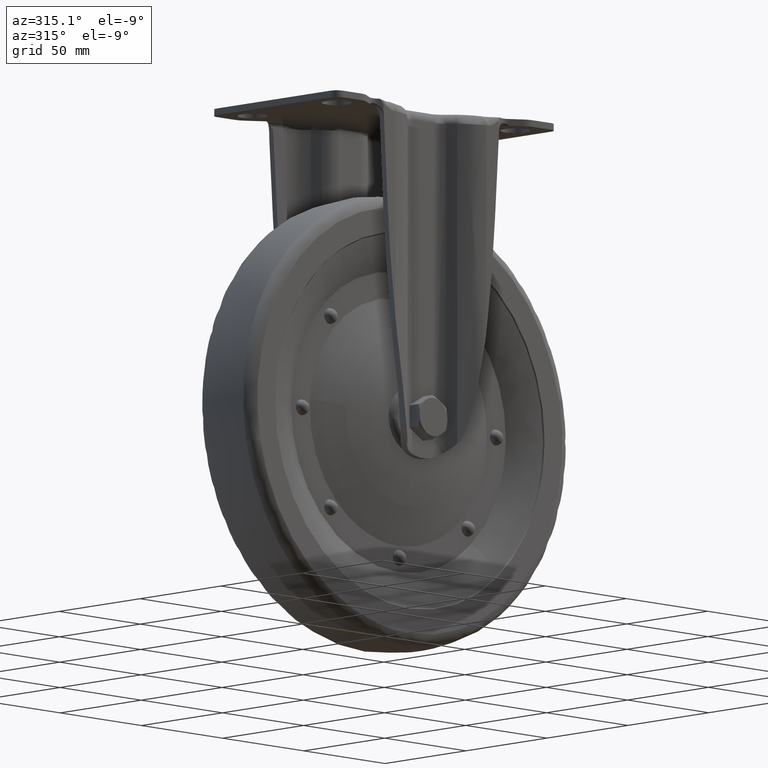
[diagram: clean part render]
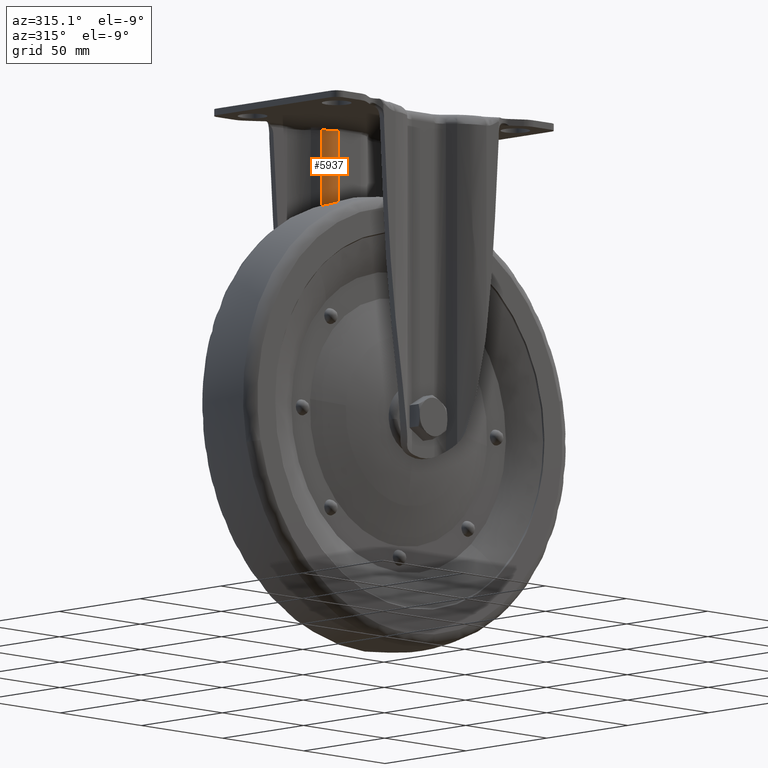
[diagram: same view with one face highlighted and labeled with its STEP entity id]
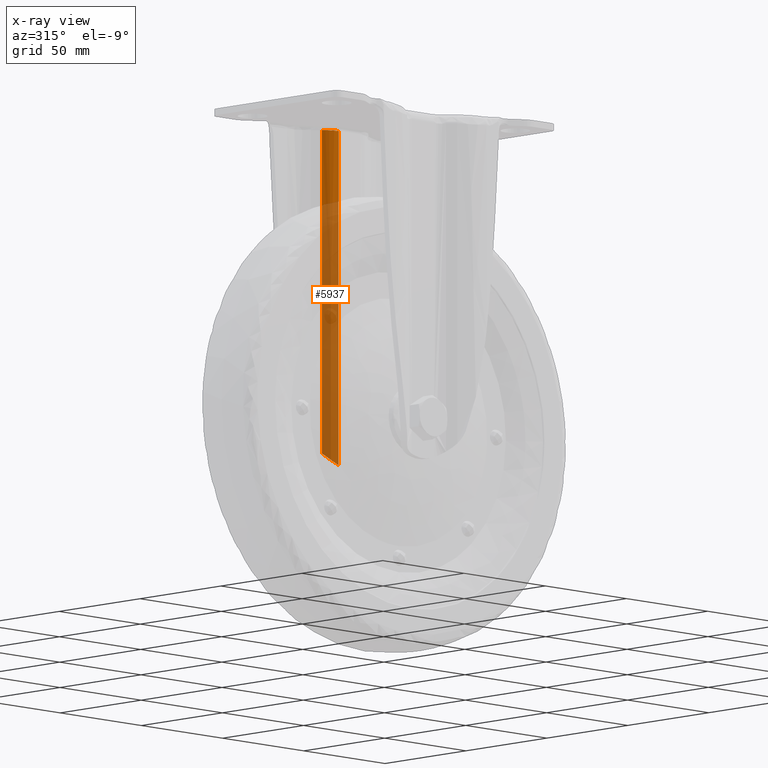
[diagram: x-ray of the same camera — body ghosted, the highlighted face saturated]
A machine part, auxiliary view. The second image highlights one B-rep face of the part: STEP entity #5937.
The next image is the same camera in x-ray: the body ghosted, the highlighted face saturated — about 78% of this face is hidden behind the body in this view.
In plain terms, the highlighted face is a freeform B-spline surface patch.
Its self-contained STEP definition (entity closure, byte-faithful):
#5827=CARTESIAN_POINT('',(-14.056637511912299,24.309468325761600,-147.516456555682400));
#5828=VERTEX_POINT('',#5827);
#5829=CARTESIAN_POINT('',(-14.056637334218900,24.309468690706002,-4.699999999999930));
#5830=VERTEX_POINT('',#5829);
#5831=CARTESIAN_POINT('',(-14.056637511912299,24.309468325761600,-147.516456555682400));
#5832=CARTESIAN_POINT('',(-14.056637334218900,24.309468690706002,-4.699999999999930));
#5833=QUASI_UNIFORM_CURVE('',1,(#5831,#5832),.UNSPECIFIED.,.F.,.U.);
#5834=EDGE_CURVE('',#5828,#5830,#5833,.T.);
#5869=CARTESIAN_POINT('',(-6.587603567241464,21.253432849859859,-155.976386313143710));
#5870=CARTESIAN_POINT('',(-6.587603567241464,21.253432849859859,-0.918090342171325));
#5871=CARTESIAN_POINT('',(-11.229826518410288,21.131871963753873,-155.976386313143650));
#5872=CARTESIAN_POINT('',(-11.229826518410288,21.131871963753873,-0.918090342171325));
#5873=CARTESIAN_POINT('',(-14.322616230846410,24.595924903886111,-155.976386313143710));
#5874=CARTESIAN_POINT('',(-14.322616230846410,24.595924903886111,-0.918090342171325));
#5882=(BOUNDED_SURFACE()B_SPLINE_SURFACE(1,2,((#5869,#5871,#5873),(#5870,#5872,#5874)),.UNSPECIFIED.,.F.,.F.,.U.)B_SPLINE_SURFACE_WITH_KNOTS((2,2),(3,3),(0.0,155.058295970972410),(0.0,8.836014535739780),.UNSPECIFIED.)GEOMETRIC_REPRESENTATION_ITEM()RATIONAL_B_SPLINE_SURFACE(((1.0,0.905065768128115,0.995165354215990),(1.0,0.905065768128115,0.995165354215990)))REPRESENTATION_ITEM('')SURFACE());
#5883=CARTESIAN_POINT('',(-6.849839000000090,21.250000000000000,-152.286718354286510));
#5884=VERTEX_POINT('',#5883);
#5885=CARTESIAN_POINT('',(-6.849839000000090,21.250000000000000,-4.699999999999930));
#5886=VERTEX_POINT('',#5885);
#5887=CARTESIAN_POINT('',(-6.849839000000090,21.250000000000000,-152.286718354286510));
#5888=CARTESIAN_POINT('',(-6.849839000000090,21.250000000000000,-4.699999999999930));
#5889=QUASI_UNIFORM_CURVE('',1,(#5887,#5888),.UNSPECIFIED.,.F.,.U.);
#5890=EDGE_CURVE('',#5884,#5886,#5889,.T.);
#5891=ORIENTED_EDGE('',*,*,#5890,.T.);
#5892=CARTESIAN_POINT('',(-6.849839000000090,21.250000000000000,-4.699999999999930));
#5893=CARTESIAN_POINT('',(-11.102649197869582,21.250000000000000,-4.699999999999931));
#5894=CARTESIAN_POINT('',(-14.056637334218889,24.309468690706002,-4.699999999999930));
#5902=(BOUNDED_CURVE()B_SPLINE_CURVE(2,(#5892,#5893,#5894),.UNSPECIFIED.,.F.,.U.)CURVE()GEOMETRIC_REPRESENTATION_ITEM()QUASI_UNIFORM_CURVE()RATIONAL_B_SPLINE_CURVE((1.0,0.920488117445490,1.0))REPRESENTATION_ITEM(''));
#5903=EDGE_CURVE('',#5886,#5830,#5902,.T.);
#5904=ORIENTED_EDGE('',*,*,#5903,.T.);
#5905=ORIENTED_EDGE('',*,*,#5834,.F.);
#5906=CARTESIAN_POINT('',(-6.849839000000051,21.250000000000000,-152.286718354286390));
#5907=CARTESIAN_POINT('',(-7.215039056203518,21.250000000000000,-152.151706831326210));
#5908=CARTESIAN_POINT('',(-7.575707682414373,21.269911567605991,-152.005560160268000));
#5909=CARTESIAN_POINT('',(-8.109935923799647,21.327953020025511,-151.769631415687910));
#5910=CARTESIAN_POINT('',(-8.286881966507190,21.352006694523240,-151.688201707453400));
#5911=CARTESIAN_POINT('',(-8.550600551215522,21.395026320985650,-151.561858086202190));
#5912=CARTESIAN_POINT('',(-8.638341053742789,21.410547725266579,-151.518983518755790));
#5913=CARTESIAN_POINT('',(-8.812354702533384,21.443712555290968,-151.432283106414590));
#5914=CARTESIAN_POINT('',(-8.898694349938360,21.461363314154639,-151.388427851272210));
#5915=CARTESIAN_POINT('',(-9.327140939350720,21.554800360510630,-151.166676861434690));
#5916=CARTESIAN_POINT('',(-9.659518865265044,21.646077406618119,-150.981366797306210));
#5917=CARTESIAN_POINT('',(-10.305222718595370,21.858646479808229,-150.596047781184100));
#5918=CARTESIAN_POINT('',(-10.618542876014351,21.979949192011460,-150.396035272899410));
#5919=CARTESIAN_POINT('',(-11.075089834858860,22.183125080298151,-150.085685503294710));
#5920=CARTESIAN_POINT('',(-11.225029501339881,22.254396442300941,-149.980512603012900));
#5921=CARTESIAN_POINT('',(-11.446652350965071,22.366537249657831,-149.820248933597210));
#5922=CARTESIAN_POINT('',(-11.519977295169310,22.404793139675199,-149.766408822365010));
#5923=CARTESIAN_POINT('',(-11.664879562684570,22.482672415162451,-149.658410444833010));
#5924=CARTESIAN_POINT('',(-11.736543782922540,22.522338879370459,-149.604189969464810));
#5925=CARTESIAN_POINT('',(-12.091038797725700,22.724226178325559,-149.332030083194610));
#5926=CARTESIAN_POINT('',(-12.362424459388510,22.897068602126438,-149.110916302084800));
#5927=CARTESIAN_POINT('',(-12.882980541070390,23.264116739911628,-148.663180634567110));
#5928=CARTESIAN_POINT('',(-13.132144386821359,23.458324572750101,-148.436553439282310));
#5929=CARTESIAN_POINT('',(-13.609728035719970,23.867856240290902,-147.979177535863900));
#5930=CARTESIAN_POINT('',(-13.838145211719070,24.083174683739440,-147.748421246603500));
#5931=CARTESIAN_POINT('',(-14.056637354775340,24.309468711996480,-147.516456722508510));
#5932=B_SPLINE_CURVE_WITH_KNOTS('',3,(#5906,#5907,#5908,#5909,#5910,#5911,#5912,#5913,#5914,#5915,#5916,#5917,#5918,#5919,#5920,#5921,#5922,#5923,#5924,#5925,#5926,#5927,#5928,#5929,#5930,#5931),.UNSPECIFIED.,.F.,.U.,(4,2,2,2,2,2,2,2,2,2,2,2,4),(0.0,0.125000000000015,0.187500000000021,0.218750000000022,0.250000000000023,0.375000000000026,0.500000000000030,0.562500000000029,0.593750000000027,0.625000000000024,0.750000000000016,0.875000000000008,1.0),.UNSPECIFIED.);
#5933=EDGE_CURVE('',#5884,#5828,#5932,.T.);
#5934=ORIENTED_EDGE('',*,*,#5933,.F.);
#5935=EDGE_LOOP('',(#5891,#5904,#5905,#5934));
#5936=FACE_OUTER_BOUND('',#5935,.T.);
#5937=ADVANCED_FACE('',(#5936),#5882,.T.);